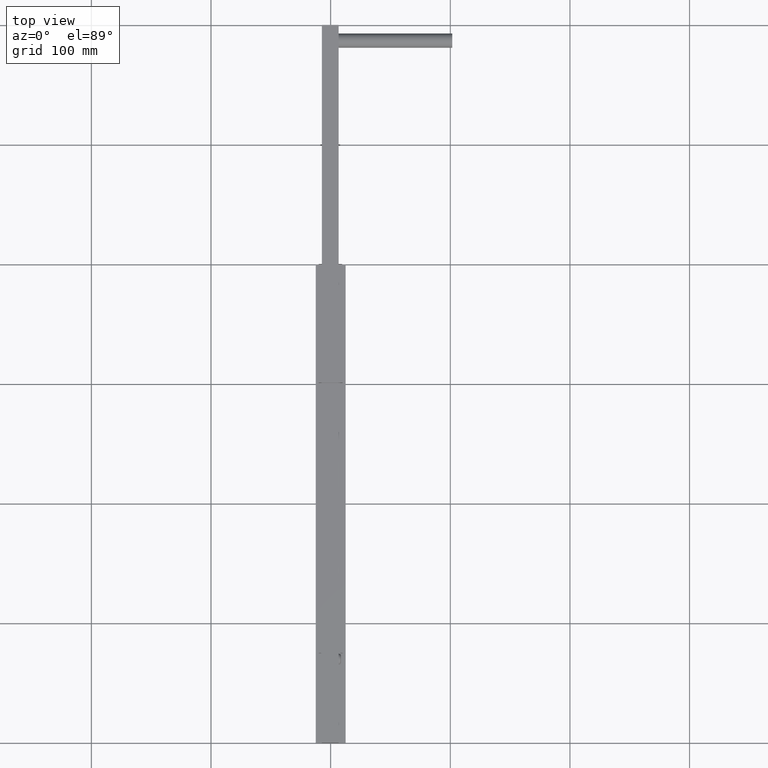
[diagram: clean part render]
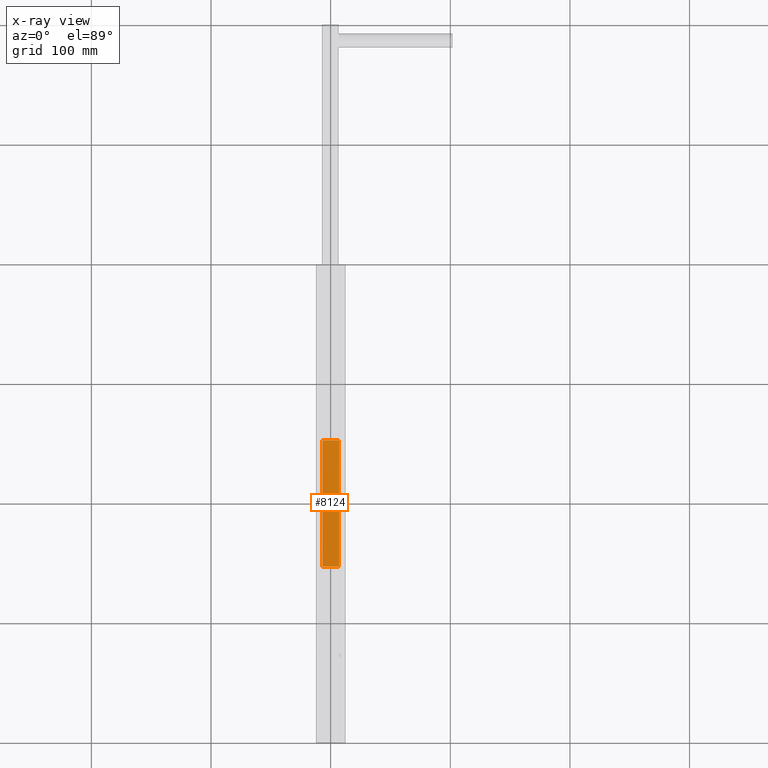
[diagram: x-ray — body ghosted, one internal face saturated and labeled with its STEP entity id]
A machine part, top view, then the same camera in x-ray: the body is ghosted and one INTERNAL B-rep face — a face not visible from any outside direction — is saturated and labeled: STEP entity #8124.
In plain terms, the highlighted cylindrical surface (partial cylindrical patch) has radius 703.37 mm, axis along (-1, -0, -0).
Its self-contained STEP definition (entity closure, byte-faithful):
#76 = DIRECTION ( 'NONE',  ( -1.000000000000000000, -0.000000000000000000, -0.000000000000000000 ) ) ;
#542 = DIRECTION ( 'NONE',  ( -1.000000000000000000, 0.000000000000000000, -0.000000000000000000 ) ) ;
#813 = CARTESIAN_POINT ( 'NONE',  ( 1.768401516867628143, 3.055945185482717097, 7.506635797073279548 ) ) ;
#846 = CARTESIAN_POINT ( 'NONE',  ( -3.499997084415229942, -0.004517641518822820834, 7.500000000000000000 ) ) ;
#909 = DIRECTION ( 'NONE',  ( -1.000000000000000000, -0.000000000000000000, -0.000000000000000000 ) ) ;
#1213 = CARTESIAN_POINT ( 'NONE',  ( 7.000000000000000000, -0.004517641518822820834, 710.8697175075145651 ) ) ;
#1526 = VERTEX_POINT ( 'NONE', #4037 ) ;
#1565 = EDGE_CURVE ( 'NONE', #8328, #10634, #6522, .T. ) ;
#1735 = CARTESIAN_POINT ( 'NONE',  ( -2.799590889889564060, -2.151040242089889087, 7.503199240073346488 ) ) ;
#1821 = CARTESIAN_POINT ( 'NONE',  ( 3.057679326587229962, 1.765303956859070267, 7.502095613046124711 ) ) ;
#2279 = ORIENTED_EDGE ( 'NONE', *, *, #8523, .F. ) ;
#2381 = CIRCLE ( 'NONE', #4039, 703.3697175220021336 ) ;
#2423 = DIRECTION ( 'NONE',  ( 0.000000000000000000, 0.000000000000000000, -1.000000000000000000 ) ) ;
#2516 = CARTESIAN_POINT ( 'NONE',  ( -3.499997084415229942, -0.004517641518822820834, 7.500000000000000000 ) ) ;
#2576 = FACE_OUTER_BOUND ( 'NONE', #3179, .T. ) ;
#2590 = DIRECTION ( 'NONE',  ( 0.000000000000000000, 0.000000000000000000, -1.000000000000000000 ) ) ;
#2607 = ORIENTED_EDGE ( 'NONE', *, *, #3212, .T. ) ;
#2653 = CARTESIAN_POINT ( 'NONE',  ( 0.4631514449678832968, 3.500164667545715425, 7.508731434985218556 ) ) ;
#2775 = CARTESIAN_POINT ( 'NONE',  ( -2.804116243146321352, 2.145323819673171428, 7.503208813906958596 ) ) ;
#2853 = CYLINDRICAL_SURFACE ( 'NONE', #9535, 703.3697175220020199 ) ;
#3059 = VERTEX_POINT ( 'NONE', #5019 ) ;
#3162 = LINE ( 'NONE', #3457, #12332 ) ;
#3179 = EDGE_LOOP ( 'NONE', ( #11554, #10827, #2279, #5657 ) ) ;
#3212 = EDGE_CURVE ( 'NONE', #10634, #8328, #3901, .T. ) ;
#3457 = CARTESIAN_POINT ( 'NONE',  ( 7.000000000000000000, -52.73922905124545224, 9.479662160624124922 ) ) ;
#3901 = B_SPLINE_CURVE_WITH_KNOTS ( 'NONE', 3,
 ( #8531, #6458, #12352, #5665, #2775, #11243, #4622, #8490, #6630, #2653, #10349, #813, #9397, #5548, #1821, #8363, #7525, #6502 ),
 .UNSPECIFIED., .F., .F.,
 ( 4, 2, 2, 2, 2, 2, 2, 2, 4 ),
 ( 0.000000000000000000, 0.1250000000000000000, 0.2500000000000000000, 0.3750000000000000000, 0.5000000000000000000, 0.6250000000000000000, 0.7500000000000000000, 0.8750000000000000000, 1.000000000000000000 ),
 .UNSPECIFIED. ) ;
#4037 = CARTESIAN_POINT ( 'NONE',  ( -7.000000000000000000, -52.73922905124545224, 9.479662160624124922 ) ) ;
#4039 = AXIS2_PLACEMENT_3D ( 'NONE', #10165, #12123, #2423 ) ;
#4288 = ORIENTED_EDGE ( 'NONE', *, *, #1565, .T. ) ;
#4554 = DIRECTION ( 'NONE',  ( -1.000000000000000000, -0.000000000000000000, -0.000000000000000000 ) ) ;
#4622 = CARTESIAN_POINT ( 'NONE',  ( -1.769501083183246282, 3.055215615615660685, 7.506632623061440412 ) ) ;
#5013 = VERTEX_POINT ( 'NONE', #9572 ) ;
#5019 = CARTESIAN_POINT ( 'NONE',  ( 7.000000000000000000, -52.73922905124545224, 9.479662160624124922 ) ) ;
#5428 = VERTEX_POINT ( 'NONE', #9396 ) ;
#5498 = CARTESIAN_POINT ( 'NONE',  ( 2.147321007165172269, -2.802466911779843972, 7.505488657627318538 ) ) ;
#5537 = AXIS2_PLACEMENT_3D ( 'NONE', #11091, #542, #2590 ) ;
#5548 = CARTESIAN_POINT ( 'NONE',  ( 2.804496859612233273, 2.144972080195203024, 7.503207523138624602 ) ) ;
#5657 = ORIENTED_EDGE ( 'NONE', *, *, #9521, .T. ) ;
#5665 = CARTESIAN_POINT ( 'NONE',  ( -3.057096445748570090, 1.766307387537064288, 7.502098187268845919 ) ) ;
#6458 = CARTESIAN_POINT ( 'NONE',  ( -3.500597081492547780, 0.4603240269759232284, 7.499999985512428857 ) ) ;
#6494 = CARTESIAN_POINT ( 'NONE',  ( -0.4611277740450810403, -3.500383209767596870, 7.508687558415408247 ) ) ;
#6502 = CARTESIAN_POINT ( 'NONE',  ( 3.499997084415229942, -0.004517641518822820834, 7.500000000000000000 ) ) ;
#6522 = B_SPLINE_CURVE_WITH_KNOTS ( 'NONE', 3,
 ( #11323, #6536, #8398, #9477, #9516, #5498, #7559, #8482, #12346, #6494, #12223, #9393, #9431, #1735, #11400, #10342, #10387, #846 ),
 .UNSPECIFIED., .F., .F.,
 ( 4, 2, 2, 2, 2, 2, 2, 2, 4 ),
 ( 0.000000000000000000, 0.1250000000000000000, 0.2500000000000000000, 0.3750000000000000000, 0.5000000000000000000, 0.6250000000000000000, 0.7500000000000000000, 0.8750000000000000000, 1.000000000000000000 ),
 .UNSPECIFIED. ) ;
#6536 = CARTESIAN_POINT ( 'NONE',  ( 3.499399051790935911, -0.4678373694554520679, 7.499999985512430634 ) ) ;
#6630 = CARTESIAN_POINT ( 'NONE',  ( -0.4656368704706552730, 3.499834891215404920, 7.508729791864664271 ) ) ;
#6922 = CIRCLE ( 'NONE', #5537, 703.3697175220021336 ) ;
#7196 = LINE ( 'NONE', #9380, #9587 ) ;
#7525 = CARTESIAN_POINT ( 'NONE',  ( 3.500596557243674578, 0.4599178704623797520, 7.499999985512429745 ) ) ;
#7559 = CARTESIAN_POINT ( 'NONE',  ( 1.769777787896728682, -3.055003743191317511, 7.506592469320114702 ) ) ;
#7984 = FACE_BOUND ( 'NONE', #10898, .T. ) ;
#8124 = ADVANCED_FACE ( 'NONE', ( #7984, #2576 ), #2853, .F. ) ;
#8328 = VERTEX_POINT ( 'NONE', #11875 ) ;
#8363 = CARTESIAN_POINT ( 'NONE',  ( 3.412252900243762710, 0.9067695788456251460, 7.500459326882955580 ) ) ;
#8398 = CARTESIAN_POINT ( 'NONE',  ( 3.410305116644611889, -0.9134896553913709472, 7.500457151942763190 ) ) ;
#8482 = CARTESIAN_POINT ( 'NONE',  ( 0.9128997686144693091, -3.410538857997193585, 7.508224284844493113 ) ) ;
#8490 = CARTESIAN_POINT ( 'NONE',  ( -0.9119267996476440041, 3.410845357587027227, 7.508269572412305415 ) ) ;
#8523 = EDGE_CURVE ( 'NONE', #5428, #3059, #6922, .T. ) ;
#8531 = CARTESIAN_POINT ( 'NONE',  ( -3.499997084415229942, -0.004517641518822820834, 7.500000000000000000 ) ) ;
#8639 = EDGE_CURVE ( 'NONE', #3059, #1526, #3162, .T. ) ;
#9380 = CARTESIAN_POINT ( 'NONE',  ( 7.000000000000000000, 53.00000000000186162, 9.499999999999953815 ) ) ;
#9393 = CARTESIAN_POINT ( 'NONE',  ( -1.764906273421990024, -3.057780516394551285, 7.506604706790629855 ) ) ;
#9396 = CARTESIAN_POINT ( 'NONE',  ( 7.000000000000000000, 53.00000000000186162, 9.499999999999953815 ) ) ;
#9397 = CARTESIAN_POINT ( 'NONE',  ( 2.147343851237668133, 2.802681259962296778, 7.505524995560984181 ) ) ;
#9431 = CARTESIAN_POINT ( 'NONE',  ( -2.143442609309581304, -2.805412100643838169, 7.505500640345293739 ) ) ;
#9477 = CARTESIAN_POINT ( 'NONE',  ( 3.055178572050474717, -1.769329882187686609, 7.502083847121188143 ) ) ;
#9516 = CARTESIAN_POINT ( 'NONE',  ( 2.802731992462040633, -2.146975006343472714, 7.503186584870064735 ) ) ;
#9521 = EDGE_CURVE ( 'NONE', #5428, #5013, #7196, .T. ) ;
#9535 = AXIS2_PLACEMENT_3D ( 'NONE', #1213, #76, #11587 ) ;
#9572 = CARTESIAN_POINT ( 'NONE',  ( -7.000000000000000000, 53.00000000000186162, 9.499999999999953815 ) ) ;
#9587 = VECTOR ( 'NONE', #4554, 1000.000000000000000 ) ;
#10165 = CARTESIAN_POINT ( 'NONE',  ( -7.000000000000000000, -0.004517641518822820834, 710.8697175075145651 ) ) ;
#10342 = CARTESIAN_POINT ( 'NONE',  ( -3.409692630885689635, -0.9166342845243831139, 7.500460416535941199 ) ) ;
#10349 = CARTESIAN_POINT ( 'NONE',  ( 0.9095030863072322003, 3.411575741139700302, 7.508273119264552875 ) ) ;
#10387 = CARTESIAN_POINT ( 'NONE',  ( -3.499396887599029338, -0.4695140556937656418, 7.499999985512429745 ) ) ;
#10634 = VERTEX_POINT ( 'NONE', #2516 ) ;
#10827 = ORIENTED_EDGE ( 'NONE', *, *, #8639, .F. ) ;
#10898 = EDGE_LOOP ( 'NONE', ( #4288, #2607 ) ) ;
#11091 = CARTESIAN_POINT ( 'NONE',  ( 7.000000000000000000, -0.004517641518822820834, 710.8697175075145651 ) ) ;
#11243 = CARTESIAN_POINT ( 'NONE',  ( -2.147944396486701990, 2.802109395782983015, 7.505522929189067050 ) ) ;
#11323 = CARTESIAN_POINT ( 'NONE',  ( 3.499997084415229942, -0.004517641518822820834, 7.500000000000000000 ) ) ;
#11400 = CARTESIAN_POINT ( 'NONE',  ( -3.052075997664734697, -1.775120940431941907, 7.502097594965912997 ) ) ;
#11554 = ORIENTED_EDGE ( 'NONE', *, *, #11850, .T. ) ;
#11587 = DIRECTION ( 'NONE',  ( 0.000000000000000000, 0.000000000000000000, 1.000000000000000000 ) ) ;
#11850 = EDGE_CURVE ( 'NONE', #5013, #1526, #2381, .T. ) ;
#11875 = CARTESIAN_POINT ( 'NONE',  ( 3.499997084415229942, -0.004517641518822820834, 7.500000000000000000 ) ) ;
#12123 = DIRECTION ( 'NONE',  ( -1.000000000000000000, 0.000000000000000000, -0.000000000000000000 ) ) ;
#12223 = CARTESIAN_POINT ( 'NONE',  ( -0.9079801962604601151, -3.411815909981736450, 7.508230659239137239 ) ) ;
#12332 = VECTOR ( 'NONE', #909, 1000.000000000000000 ) ;
#12346 = CARTESIAN_POINT ( 'NONE',  ( 0.4669267317863682321, -3.499614388237958007, 7.508683737616347997 ) ) ;
#12352 = CARTESIAN_POINT ( 'NONE',  ( -3.411940656500759950, 0.9079324988087977832, 7.500460883189930428 ) ) ;